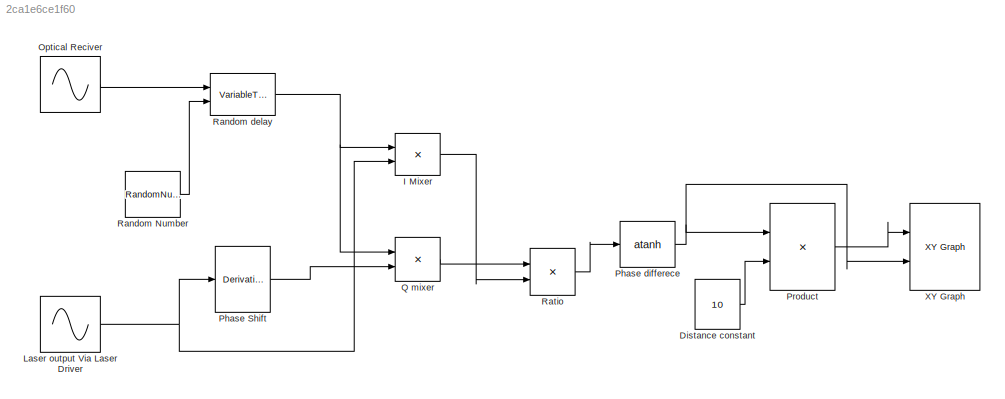
MODEL slx_2ca1e6ce1f60
KIND model
CONFIG AbsTol = auto
CONFIG EnableMultiTasking = off
CONFIG FixedStep = auto
CONFIG MaxStep = auto
CONFIG MinStep = auto
CONFIG RelTol = 1e-3
CONFIG SampleTimeConstraint = Unconstrained
CONFIG Solver = FixedStepDiscrete
CONFIG SolverName = FixedStepDiscrete
CONFIG StartTime = 0.0
CONFIG StopTime = inf
BLOCK [Constant] Distance constant
  Value = 10
BLOCK [Product] I Mixer
  InputSameDT = off
  OutDataTypeStr = Inherit: Inherit via internal rule
  Ports = [2, 1]
  RndMeth = Floor
  SaturateOnIntegerOverflow = off
BLOCK [Sin] Laser output Via Laser Driver
  Frequency = 10
  Ports = [0, 1]
  SampleTime = 0
BLOCK [Sin] Optical Reciver
  Frequency = 10
  Ports = [0, 1]
  SampleTime = 0
BLOCK [Derivative] Phase Shift
BLOCK [Trigonometry] Phase differece
  Operator = atanh
  OutputSignalType = real
  Ports = [1, 1]
BLOCK [Product] Product
  InputSameDT = off
  OutDataTypeStr = Inherit: Inherit via internal rule
  Ports = [2, 1]
  RndMeth = Floor
  SaturateOnIntegerOverflow = off
BLOCK [Product] Q mixer
  InputSameDT = off
  OutDataTypeStr = Inherit: Inherit via internal rule
  Ports = [2, 1]
  RndMeth = Floor
  SaturateOnIntegerOverflow = off
BLOCK [RandomNumber] Random Number
  Mean = 1
  SampleTime = 0.1
BLOCK [VariableTransportDelay] Random delay 
  MaximumDelay = 10
  Ports = [2, 1]
BLOCK [Product] Ratio
  InputSameDT = off
  OutDataTypeStr = Inherit: Inherit via internal rule
  Ports = [2, 1]
  RndMeth = Floor
  SaturateOnIntegerOverflow = off
BLOCK [Reference] XY Graph  REF=simulink/Sinks/XY Graph
  Ports = [2]
  SourceBlock = simulink/Sinks/XY Graph
  SourceType = XY scope.
LINE Distance constant:1 -> Product:2
LINE I Mixer:1 -> Ratio:2
NET Laser output Via Laser Driver:1 -> I Mixer:2, Phase Shift:1
LINE Optical Reciver:1 -> Random delay :1
LINE Phase Shift:1 -> Q mixer:2
NET Phase differece:1 -> Product:1, XY Graph:2
LINE Product:1 -> XY Graph:1
LINE Q mixer:1 -> Ratio:1
LINE Random Number:1 -> Random delay :2
NET Random delay :1 -> I Mixer:1, Q mixer:1
LINE Ratio:1 -> Phase differece:1
note: NET lines group one-source signal fan-out (src -> all destinations, sorted); 1:1 wires keep LINE
